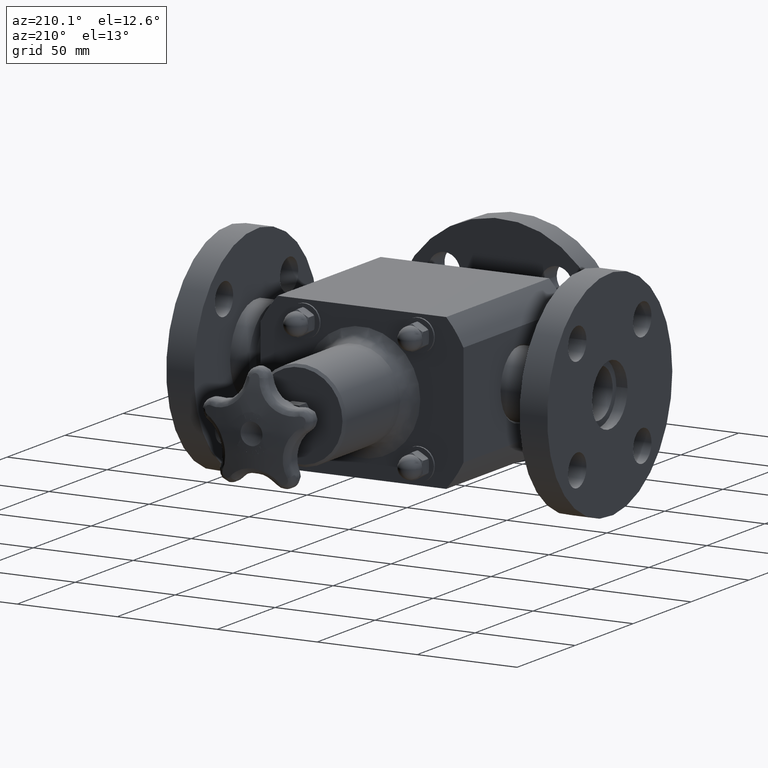
[diagram: clean part render]
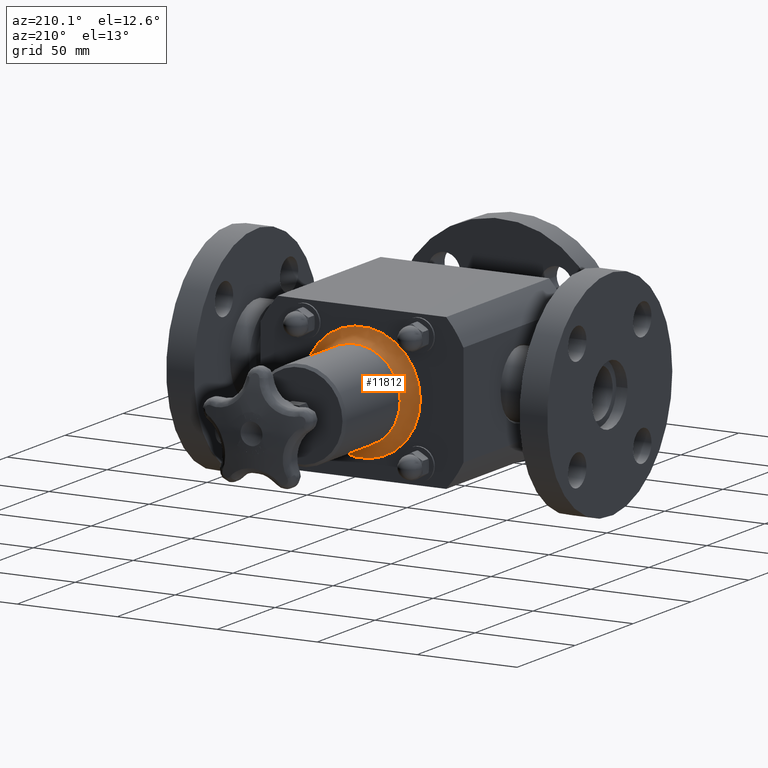
[diagram: same view with one face highlighted and labeled with its STEP entity id]
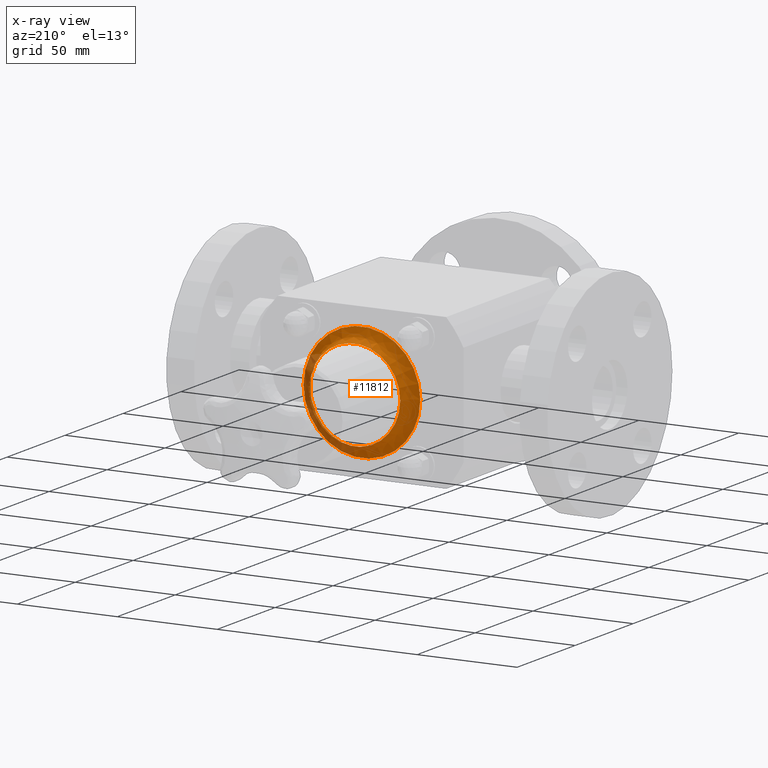
[diagram: x-ray of the same camera — body ghosted, the highlighted face saturated]
A machine part, auxiliary view. The second image highlights one B-rep face of the part: STEP entity #11812.
The next image is the same camera in x-ray: the body ghosted, the highlighted face saturated — about 18% of this face is hidden behind the body in this view.
In plain terms, the highlighted face is a freeform B-spline surface patch.
Its self-contained STEP definition (entity closure, byte-faithful):
#8569=CARTESIAN_POINT('',(1.149999999999998,3.500000000000000,-5.003324E-016));
#8570=VERTEX_POINT('',#8569);
#8571=CARTESIAN_POINT('',(-2.159895E-015,3.499999999999999,-4.214597E-016));
#8572=DIRECTION('',(0.0,-1.0,0.0));
#8573=DIRECTION('',(1.0,0.0,0.0));
#8574=AXIS2_PLACEMENT_3D('',#8571,#8572,#8573);
#8575=CIRCLE('',#8574,1.150000000000000);
#8576=EDGE_CURVE('',#8570,#8570,#8575,.T.);
#11745=CARTESIAN_POINT('',(-2.401637E-015,3.750000000000000,1.400000000000000));
#11746=CARTESIAN_POINT('',(-2.235326E-015,3.499999999999998,1.400000000000002));
#11747=CARTESIAN_POINT('',(-2.221857E-015,3.499999999999998,1.150000000000000));
#11748=CARTESIAN_POINT('',(-2.208387E-015,3.499999999999998,0.899999999999998));
#11749=CARTESIAN_POINT('',(-2.374697E-015,3.750000000000000,0.900000000000000));
#11750=CARTESIAN_POINT('',(-1.400000000000002,3.749999999999999,1.400000000000000));
#11751=CARTESIAN_POINT('',(-1.400000000000004,3.499999999999997,1.400000000000002));
#11752=CARTESIAN_POINT('',(-1.150000000000002,3.499999999999997,1.150000000000000));
#11753=CARTESIAN_POINT('',(-0.900000000000001,3.499999999999998,0.899999999999998));
#11754=CARTESIAN_POINT('',(-0.900000000000002,3.749999999999999,0.900000000000000));
#11755=CARTESIAN_POINT('',(-1.400000000000003,3.749999999999999,-4.968914E-016));
#11756=CARTESIAN_POINT('',(-1.400000000000004,3.499999999999997,-4.968914E-016));
#11757=CARTESIAN_POINT('',(-1.150000000000003,3.499999999999997,-4.834214E-016));
#11758=CARTESIAN_POINT('',(-0.900000000000001,3.499999999999998,-4.699515E-016));
#11759=CARTESIAN_POINT('',(-0.900000000000003,3.750000000000000,-4.699515E-016));
#11760=CARTESIAN_POINT('',(-1.400000000000002,3.749999999999999,-1.400000000000001));
#11761=CARTESIAN_POINT('',(-1.400000000000004,3.499999999999997,-1.400000000000002));
#11762=CARTESIAN_POINT('',(-1.150000000000002,3.499999999999997,-1.150000000000001));
#11763=CARTESIAN_POINT('',(-0.900000000000001,3.499999999999998,-0.899999999999999));
#11764=CARTESIAN_POINT('',(-0.900000000000002,3.749999999999999,-0.900000000000000));
#11765=CARTESIAN_POINT('',(-2.250774E-015,3.750000000000000,-1.400000000000001));
#11766=CARTESIAN_POINT('',(-2.084463E-015,3.499999999999998,-1.400000000000003));
#11767=CARTESIAN_POINT('',(-2.097933E-015,3.499999999999998,-1.150000000000001));
#11768=CARTESIAN_POINT('',(-2.111403E-015,3.499999999999998,-0.899999999999999));
#11769=CARTESIAN_POINT('',(-2.277714E-015,3.750000000000000,-0.900000000000001));
#11770=CARTESIAN_POINT('',(1.399999999999998,3.750000000000001,-1.400000000000001));
#11771=CARTESIAN_POINT('',(1.400000000000000,3.499999999999999,-1.400000000000002));
#11772=CARTESIAN_POINT('',(1.149999999999998,3.499999999999999,-1.150000000000001));
#11773=CARTESIAN_POINT('',(0.899999999999996,3.499999999999999,-0.899999999999999));
#11774=CARTESIAN_POINT('',(0.899999999999998,3.750000000000000,-0.900000000000000));
#11775=CARTESIAN_POINT('',(1.399999999999998,3.750000000000001,-3.460281E-016));
#11776=CARTESIAN_POINT('',(1.400000000000000,3.499999999999999,-3.460281E-016));
#11777=CARTESIAN_POINT('',(1.149999999999998,3.499999999999999,-3.594980E-016));
#11778=CARTESIAN_POINT('',(0.899999999999997,3.499999999999999,-3.729680E-016));
#11779=CARTESIAN_POINT('',(0.899999999999998,3.750000000000000,-3.729680E-016));
#11780=CARTESIAN_POINT('',(1.399999999999998,3.750000000000001,1.400000000000000));
#11781=CARTESIAN_POINT('',(1.400000000000000,3.499999999999999,1.400000000000002));
#11782=CARTESIAN_POINT('',(1.149999999999998,3.499999999999999,1.150000000000000));
#11783=CARTESIAN_POINT('',(0.899999999999996,3.499999999999999,0.899999999999998));
#11784=CARTESIAN_POINT('',(0.899999999999998,3.750000000000000,0.900000000000000));
#11785=CARTESIAN_POINT('',(-2.401637E-015,3.750000000000000,1.400000000000000));
#11786=CARTESIAN_POINT('',(-2.235326E-015,3.499999999999998,1.400000000000002));
#11787=CARTESIAN_POINT('',(-2.221857E-015,3.499999999999998,1.150000000000000));
#11788=CARTESIAN_POINT('',(-2.208387E-015,3.499999999999998,0.899999999999998));
#11789=CARTESIAN_POINT('',(-2.374697E-015,3.750000000000000,0.900000000000000));
#11797=(BOUNDED_SURFACE()B_SPLINE_SURFACE(2,2,((#11745,#11750,#11755,#11760,#11765,#11770,#11775,#11780,#11785),(#11746,#11751,#11756,#11761,#11766,#11771,#11776,#11781,#11786),(#11747,#11752,#11757,#11762,#11767,#11772,#11777,#11782,#11787),(#11748,#11753,#11758,#11763,#11768,#11773,#11778,#11783,#11788),(#11749,#11754,#11759,#11764,#11769,#11774,#11779,#11784,#11789)),.UNSPECIFIED.,.F.,.T.,.U.)B_SPLINE_SURFACE_WITH_KNOTS((3,2,3),(3,2,2,2,3),(-6.612826E-015,1.570796326794897,3.141592653589800),(0.0,1.570796326794897,3.141592653589793,4.712388980384690,6.283185307179586),.UNSPECIFIED.)GEOMETRIC_REPRESENTATION_ITEM()RATIONAL_B_SPLINE_SURFACE(((1.0,0.707106781186548,1.0,0.707106781186548,1.0,0.707106781186548,1.0,0.707106781186548,1.0),(0.707106781186542,0.499999999999996,0.707106781186542,0.499999999999996,0.707106781186542,0.499999999999996,0.707106781186542,0.499999999999996,0.707106781186542),(1.0,0.707106781186548,1.0,0.707106781186548,1.0,0.707106781186548,1.0,0.707106781186548,1.0),(0.707106781186544,0.499999999999998,0.707106781186544,0.499999999999998,0.707106781186544,0.499999999999998,0.707106781186544,0.499999999999998,0.707106781186544),(1.0,0.707106781186548,1.0,0.707106781186548,1.0,0.707106781186548,1.0,0.707106781186548,1.0)))REPRESENTATION_ITEM('')SURFACE());
#11798=ORIENTED_EDGE('',*,*,#8576,.F.);
#11799=EDGE_LOOP('',(#11798));
#11800=FACE_OUTER_BOUND('',#11799,.T.);
#11801=CARTESIAN_POINT('',(0.899999999999998,3.749999999999999,-4.831862E-016));
#11802=VERTEX_POINT('',#11801);
#11803=CARTESIAN_POINT('',(-2.326205E-015,3.749999999999998,-4.214597E-016));
#11804=DIRECTION('',(0.0,-1.0,0.0));
#11805=DIRECTION('',(1.0,0.0,0.0));
#11806=AXIS2_PLACEMENT_3D('',#11803,#11804,#11805);
#11807=CIRCLE('',#11806,0.900000000000000);
#11808=EDGE_CURVE('',#11802,#11802,#11807,.T.);
#11809=ORIENTED_EDGE('',*,*,#11808,.T.);
#11810=EDGE_LOOP('',(#11809));
#11811=FACE_BOUND('',#11810,.T.);
#11812=ADVANCED_FACE('',(#11800,#11811),#11797,.T.);